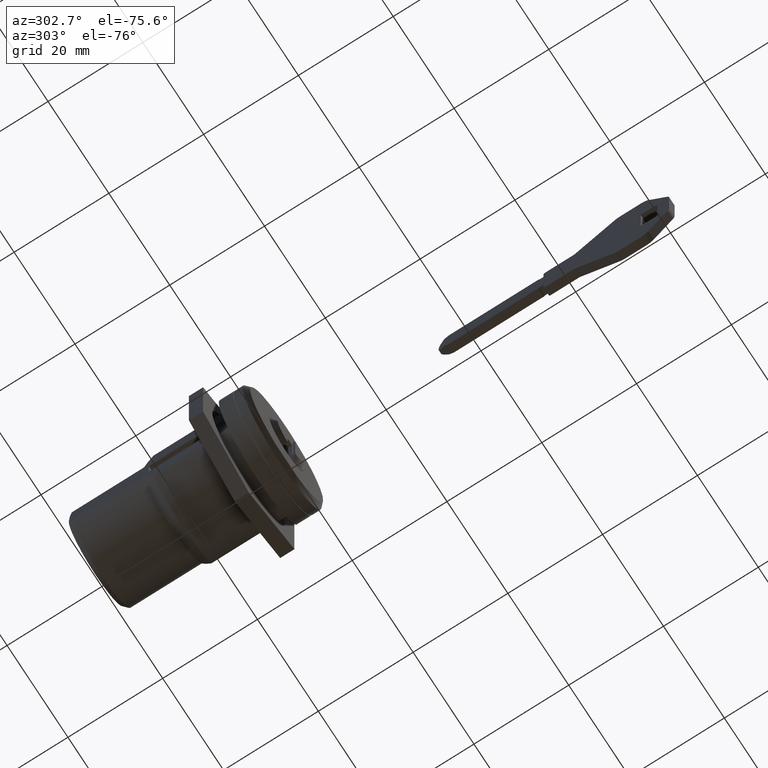
[diagram: clean part render]
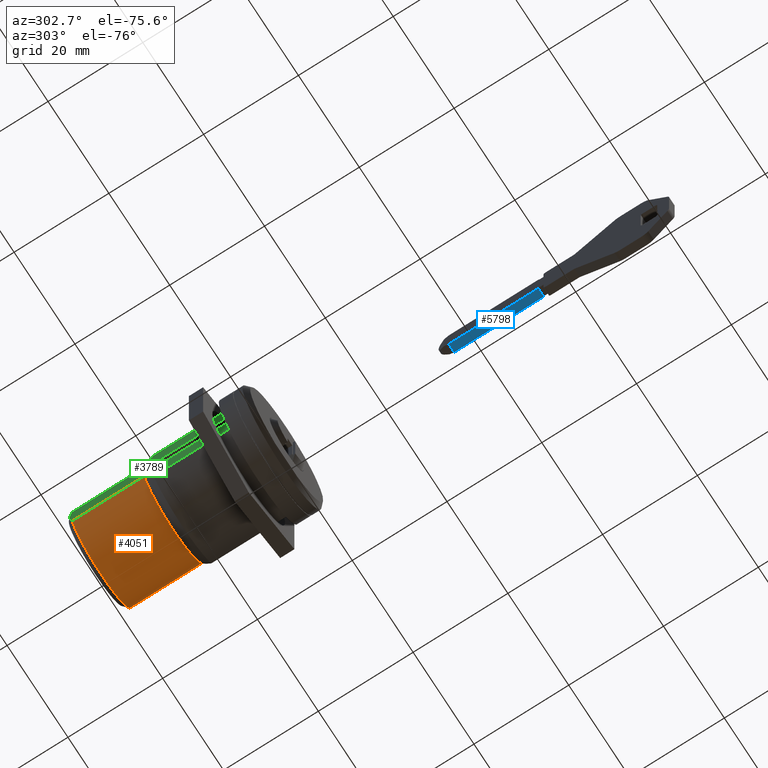
[diagram: same view with three faces highlighted in distinct colors, each labeled with its STEP entity id]
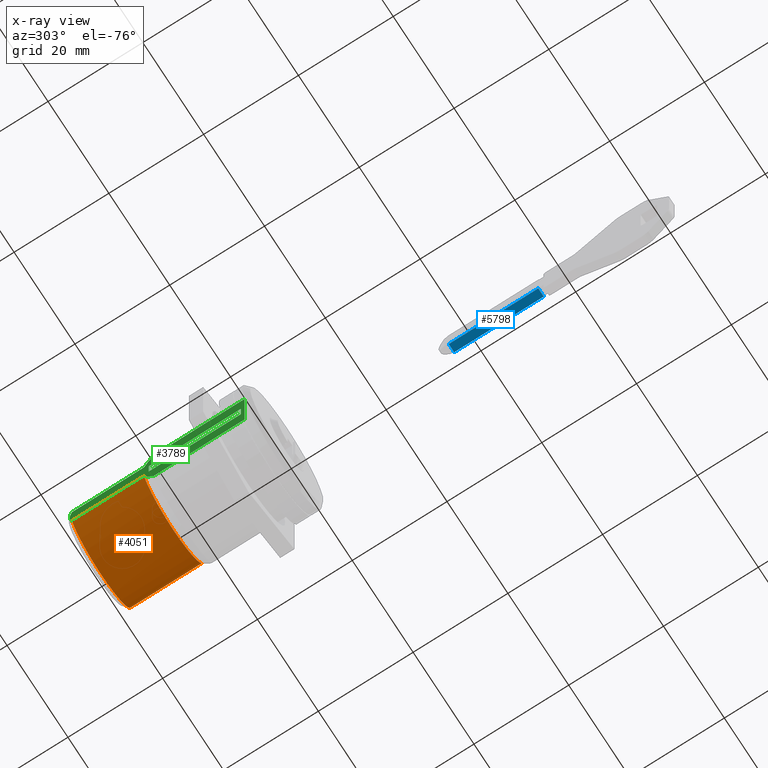
[diagram: x-ray of the same camera — body ghosted, the three highlighted faces saturated]
A machine part, auxiliary view with three faces highlighted in distinct colors.
The next image is the same camera in x-ray (body ghosted, the three faces saturated) — at least one of them is partly hidden behind the body in this view.
Their STEP definitions:

[orange] entity #4051 — the highlighted face is a freeform B-spline surface patch.
#2365=CARTESIAN_POINT('',(40.199999999968803,8.415591271343658,-5.401650076999593));
#2366=VERTEX_POINT('',#2365);
#2372=CARTESIAN_POINT('',(40.199999999999200,9.500000000000000,-3.122498999208290));
#2373=VERTEX_POINT('',#2372);
#2374=CARTESIAN_POINT('',(40.199999999999200,9.499999999999998,-3.122498999208288));
#2375=CARTESIAN_POINT('',(40.199999999999200,9.102767954870618,-4.331051645561760));
#2376=CARTESIAN_POINT('',(40.199999999968803,8.415591271343658,-5.401650076999593));
#2384=(BOUNDED_CURVE()B_SPLINE_CURVE(2,(#2374,#2375,#2376),.UNSPECIFIED.,.F.,.U.)B_SPLINE_CURVE_WITH_KNOTS((3,3),(0.0,0.104176805562154),.UNSPECIFIED.)CURVE()GEOMETRIC_REPRESENTATION_ITEM()RATIONAL_B_SPLINE_CURVE((1.0,0.960416022753616,0.937326974711125))REPRESENTATION_ITEM(''));
#2385=EDGE_CURVE('',#2373,#2366,#2384,.T.);
#2486=CARTESIAN_POINT('',(40.199999999999200,-9.500000000000000,-3.122498999208290));
#2487=VERTEX_POINT('',#2486);
#2509=CARTESIAN_POINT('',(40.199999999968803,8.415591271343658,-5.401650076999593));
#2510=CARTESIAN_POINT('',(40.199999999999200,5.464084191563152,-10.000000000002915));
#2511=CARTESIAN_POINT('',(40.199999999999200,0.0,-10.000000000002920));
#2512=CARTESIAN_POINT('',(40.199999999999200,-7.239474737680579,-10.000000000002917));
#2513=CARTESIAN_POINT('',(40.199999999999200,-9.499999999999996,-3.122498999208292));
#2521=(BOUNDED_CURVE()B_SPLINE_CURVE(2,(#2509,#2510,#2511,#2512,#2513),.UNSPECIFIED.,.F.,.U.)B_SPLINE_CURVE_WITH_KNOTS((3,2,3),(0.104176805562154,0.500000000000000,1.0),.UNSPECIFIED.)CURVE()GEOMETRIC_REPRESENTATION_ITEM()RATIONAL_B_SPLINE_CURVE((0.937326974711125,0.849599378310071,1.0,0.810015401063687,1.0))REPRESENTATION_ITEM(''));
#2522=EDGE_CURVE('',#2366,#2487,#2521,.T.);
#3581=CARTESIAN_POINT('',(24.999999999994600,-9.500000000000000,-3.122498999206030));
#3582=VERTEX_POINT('',#3581);
#3596=CARTESIAN_POINT('',(40.199999999999200,-9.500000000000000,-3.122498999208290));
#3597=CARTESIAN_POINT('',(24.999999999994600,-9.500000000000000,-3.122498999206030));
#3598=QUASI_UNIFORM_CURVE('',1,(#3596,#3597),.UNSPECIFIED.,.F.,.U.);
#3599=EDGE_CURVE('',#2487,#3582,#3598,.T.);
#3755=CARTESIAN_POINT('',(24.999999999994600,9.500000000000000,-3.122498999206030));
#3756=VERTEX_POINT('',#3755);
#3757=CARTESIAN_POINT('',(24.999999999994600,9.500000000000000,-3.122498999206030));
#3758=CARTESIAN_POINT('',(40.199999999999200,9.500000000000000,-3.122498999208290));
#3759=QUASI_UNIFORM_CURVE('',1,(#3757,#3758),.UNSPECIFIED.,.F.,.U.);
#3760=EDGE_CURVE('',#3756,#2373,#3759,.T.);
#3896=CARTESIAN_POINT('',(24.999999999994600,9.500000000000000,-3.122498999206030));
#3897=CARTESIAN_POINT('',(24.999999999994603,7.239474737681205,-10.000000000001513));
#3898=CARTESIAN_POINT('',(24.999999999994600,0.0,-10.000000000001521));
#3899=CARTESIAN_POINT('',(24.999999999994603,-7.239474737681205,-10.000000000001513));
#3900=CARTESIAN_POINT('',(24.999999999994600,-9.500000000000000,-3.122498999206030));
#3908=(BOUNDED_CURVE()B_SPLINE_CURVE(2,(#3896,#3897,#3898,#3899,#3900),.UNSPECIFIED.,.F.,.U.)B_SPLINE_CURVE_WITH_KNOTS((3,2,3),(0.0,0.500000000000000,1.0),.UNSPECIFIED.)CURVE()GEOMETRIC_REPRESENTATION_ITEM()RATIONAL_B_SPLINE_CURVE((1.0,0.810015401063624,1.0,0.810015401063624,1.0))REPRESENTATION_ITEM(''));
#3909=EDGE_CURVE('',#3756,#3582,#3908,.T.);
#4026=CARTESIAN_POINT('',(40.579999999999323,-9.597801699851534,-2.807526051592329));
#4027=CARTESIAN_POINT('',(24.610499999994481,-9.597801699851534,-2.807526051592329));
#4028=CARTESIAN_POINT('',(40.579999999999323,-7.443511191010814,-10.172178321158755));
#4029=CARTESIAN_POINT('',(24.610499999994481,-7.443511191010814,-10.172178321158755));
#4030=CARTESIAN_POINT('',(40.579999999999323,0.227768050173375,-9.997405749261377));
#4031=CARTESIAN_POINT('',(24.610499999994481,0.227768050173375,-9.997405749261377));
#4032=CARTESIAN_POINT('',(40.579999999999323,7.899047291357566,-9.822633177363999));
#4033=CARTESIAN_POINT('',(24.610499999994481,7.899047291357566,-9.822633177363999));
#4034=CARTESIAN_POINT('',(40.579999999999323,9.715703118353003,-2.367511967460393));
#4035=CARTESIAN_POINT('',(24.610499999994481,9.715703118353003,-2.367511967460393));
#4043=(BOUNDED_SURFACE()B_SPLINE_SURFACE(1,2,((#4026,#4028,#4030,#4032,#4034),(#4027,#4029,#4031,#4033,#4035)),.UNSPECIFIED.,.F.,.F.,.U.)B_SPLINE_SURFACE_WITH_KNOTS((2,2),(3,2,3),(0.0,15.969500000004849),(0.0,13.578170354537891,27.156340709075771),.UNSPECIFIED.)GEOMETRIC_REPRESENTATION_ITEM()RATIONAL_B_SPLINE_SURFACE(((1.0,0.793353340291235,1.0,0.793353340291235,1.0),(1.0,0.793353340291235,1.0,0.793353340291235,1.0)))REPRESENTATION_ITEM('')SURFACE());
#4044=ORIENTED_EDGE('',*,*,#2385,.T.);
#4045=ORIENTED_EDGE('',*,*,#2522,.T.);
#4046=ORIENTED_EDGE('',*,*,#3599,.T.);
#4047=ORIENTED_EDGE('',*,*,#3909,.F.);
#4048=ORIENTED_EDGE('',*,*,#3760,.T.);
#4049=EDGE_LOOP('',(#4044,#4045,#4046,#4047,#4048));
#4050=FACE_OUTER_BOUND('',#4049,.T.);
#4051=ADVANCED_FACE('',(#4050),#4043,.T.);

[blue] entity #5798 — the highlighted face is a freeform B-spline surface patch.
#4816=CARTESIAN_POINT('',(-52.680282098133802,-0.900000000000012,-4.300000000001405));
#4817=VERTEX_POINT('',#4816);
#4823=CARTESIAN_POINT('',(-33.780282098133753,-0.900000000000012,-4.300000000001520));
#4824=VERTEX_POINT('',#4823);
#4825=CARTESIAN_POINT('',(-33.780282098133753,-0.900000000000012,-4.300000000001520));
#4826=CARTESIAN_POINT('',(-52.680282098133802,-0.900000000000012,-4.300000000001405));
#4827=QUASI_UNIFORM_CURVE('',1,(#4825,#4826),.UNSPECIFIED.,.F.,.U.);
#4828=EDGE_CURVE('',#4824,#4817,#4827,.T.);
#4941=CARTESIAN_POINT('',(-33.780282098133753,0.900000000000012,-4.300000000001520));
#4942=VERTEX_POINT('',#4941);
#4948=CARTESIAN_POINT('',(-52.680282098133802,0.900000000000012,-4.300000000001405));
#4949=VERTEX_POINT('',#4948);
#4950=CARTESIAN_POINT('',(-33.780282098133753,0.900000000000012,-4.300000000001520));
#4951=CARTESIAN_POINT('',(-52.680282098133802,0.900000000000012,-4.300000000001405));
#4952=QUASI_UNIFORM_CURVE('',1,(#4950,#4951),.UNSPECIFIED.,.F.,.U.);
#4953=EDGE_CURVE('',#4942,#4949,#4952,.T.);
#5775=CARTESIAN_POINT('',(-52.680282098133802,0.900000000000012,-4.300000000001405));
#5776=CARTESIAN_POINT('',(-52.680282098133802,-0.900000000000012,-4.300000000001405));
#5777=QUASI_UNIFORM_CURVE('',1,(#5775,#5776),.UNSPECIFIED.,.F.,.U.);
#5778=EDGE_CURVE('',#4949,#4817,#5777,.T.);
#5783=CARTESIAN_POINT('',(-53.624337593760970,-0.989909973183288,-4.300000000001405));
#5784=CARTESIAN_POINT('',(-32.836226602506592,-0.989909973183288,-4.300000000001405));
#5785=CARTESIAN_POINT('',(-53.624337593760970,0.989909908810271,-4.300000000001405));
#5786=CARTESIAN_POINT('',(-32.836226602506592,0.989909908810271,-4.300000000001405));
#5787=B_SPLINE_SURFACE_WITH_KNOTS('',1,1,((#5783,#5785),(#5784,#5786)),.UNSPECIFIED.,.F.,.F.,.U.,(2,2),(2,2),(0.0,20.788110991254388),(0.0,1.979819881993559),.UNSPECIFIED.);
#5788=ORIENTED_EDGE('',*,*,#4828,.T.);
#5789=ORIENTED_EDGE('',*,*,#5778,.F.);
#5790=ORIENTED_EDGE('',*,*,#4953,.F.);
#5791=CARTESIAN_POINT('',(-33.780282098133753,0.900000000000012,-4.300000000001520));
#5792=CARTESIAN_POINT('',(-33.780282098133753,-0.900000000000012,-4.300000000001520));
#5793=QUASI_UNIFORM_CURVE('',1,(#5791,#5792),.UNSPECIFIED.,.F.,.U.);
#5794=EDGE_CURVE('',#4942,#4824,#5793,.T.);
#5795=ORIENTED_EDGE('',*,*,#5794,.T.);
#5796=EDGE_LOOP('',(#5788,#5789,#5790,#5795));
#5797=FACE_OUTER_BOUND('',#5796,.T.);
#5798=ADVANCED_FACE('',(#5797),#5787,.F.);

[green] entity #3789 — the highlighted face is a freeform B-spline surface patch.
#2372=CARTESIAN_POINT('',(40.199999999999200,9.500000000000000,-3.122498999208290));
#2373=VERTEX_POINT('',#2372);
#2387=CARTESIAN_POINT('',(40.199999999999200,9.500000000000000,3.122498999208065));
#2388=VERTEX_POINT('',#2387);
#2389=CARTESIAN_POINT('',(40.199999999999250,9.500000000000000,-3.122498999208306));
#2390=CARTESIAN_POINT('',(40.278488772283772,9.500000000000002,-2.871133755202025));
#2391=CARTESIAN_POINT('',(40.349313588058500,9.500000000000000,-2.616950969025410));
#2392=CARTESIAN_POINT('',(40.442385996470847,9.499999999999998,-2.230836936861609));
#2393=CARTESIAN_POINT('',(40.471214315477312,9.500000000000000,-2.101324999234522));
#2394=CARTESIAN_POINT('',(40.524183209117737,9.500000000000000,-1.840577742925624));
#2395=CARTESIAN_POINT('',(40.548336720412543,9.500000000000000,-1.709200585151537));
#2396=CARTESIAN_POINT('',(40.655862299006763,9.500000000000000,-1.052979438955482));
#2397=CARTESIAN_POINT('',(40.700105820171402,9.500000000000002,-0.526391610831322));
#2398=CARTESIAN_POINT('',(40.699946803016033,9.500000000000004,0.266055296051303));
#2399=CARTESIAN_POINT('',(40.688857466678350,9.500000000000004,0.530629823885389));
#2400=CARTESIAN_POINT('',(40.655682827513203,9.499999999999996,0.928129419458317));
#2401=CARTESIAN_POINT('',(40.641831117773499,9.500000000000002,1.061026564323568));
#2402=CARTESIAN_POINT('',(40.608902361715550,9.499999999999996,1.325269367390163));
#2403=CARTESIAN_POINT('',(40.589840762858302,9.500000000000002,1.456626893737618));
#2404=CARTESIAN_POINT('',(40.482202702661297,9.500000000000004,2.109788098608739));
#2405=CARTESIAN_POINT('',(40.356678853704977,9.500000000000000,2.620725087525325));
#2406=CARTESIAN_POINT('',(40.199999999999200,9.500000000000000,3.122498999208065));
#2407=B_SPLINE_CURVE_WITH_KNOTS('',3,(#2389,#2390,#2391,#2392,#2393,#2394,#2395,#2396,#2397,#2398,#2399,#2400,#2401,#2402,#2403,#2404,#2405,#2406),.UNSPECIFIED.,.F.,.U.,(4,2,2,2,2,2,2,2,4),(0.0,0.125000000000000,0.187500000000000,0.250000000000000,0.500000000000000,0.624999999999999,0.687499999999999,0.749999999999999,1.0),.UNSPECIFIED.);
#2408=EDGE_CURVE('',#2373,#2388,#2407,.T.);
#2740=CARTESIAN_POINT('',(4.600000000000000,9.499999999998071,1.900000000000210));
#2741=VERTEX_POINT('',#2740);
#2748=CARTESIAN_POINT('',(4.600000000000000,9.499999999998071,-1.899999999999775));
#2749=VERTEX_POINT('',#2748);
#2755=CARTESIAN_POINT('',(4.600000000000000,9.499999999998071,1.900000000000210));
#2756=CARTESIAN_POINT('',(4.600000000000000,9.499999999998071,-1.899999999999775));
#2757=QUASI_UNIFORM_CURVE('',1,(#2755,#2756),.UNSPECIFIED.,.F.,.U.);
#2758=EDGE_CURVE('',#2741,#2749,#2757,.T.);
#2778=CARTESIAN_POINT('',(24.0,9.499999999998071,1.900000000001175));
#2779=VERTEX_POINT('',#2778);
#2780=CARTESIAN_POINT('',(24.0,9.499999999998071,1.900000000001175));
#2781=CARTESIAN_POINT('',(4.600000000000000,9.499999999998071,1.900000000000210));
#2782=QUASI_UNIFORM_CURVE('',1,(#2780,#2781),.UNSPECIFIED.,.F.,.U.);
#2783=EDGE_CURVE('',#2779,#2741,#2782,.T.);
#2798=CARTESIAN_POINT('',(24.000000000000899,9.500000000000000,-1.899999999998810));
#2799=VERTEX_POINT('',#2798);
#2800=CARTESIAN_POINT('',(24.000000000000899,9.500000000000000,-1.899999999998810));
#2801=CARTESIAN_POINT('',(24.0,9.499999999998071,1.900000000001175));
#2802=QUASI_UNIFORM_CURVE('',1,(#2800,#2801),.UNSPECIFIED.,.F.,.U.);
#2803=EDGE_CURVE('',#2799,#2779,#2802,.T.);
#3642=CARTESIAN_POINT('',(3.800000000000000,9.500000000000000,7.331439149312010));
#3643=VERTEX_POINT('',#3642);
#3644=CARTESIAN_POINT('',(3.800000000000000,9.500000000000000,-7.331439149303040));
#3645=VERTEX_POINT('',#3644);
#3646=CARTESIAN_POINT('',(3.800000000000000,9.500000000000000,7.331439149312010));
#3647=CARTESIAN_POINT('',(3.800000000000000,9.500000000000000,-7.331439149303040));
#3648=QUASI_UNIFORM_CURVE('',1,(#3646,#3647),.UNSPECIFIED.,.F.,.U.);
#3649=EDGE_CURVE('',#3643,#3645,#3648,.T.);
#3681=CARTESIAN_POINT('',(3.999999999990680,9.500000000000000,7.331439149312010));
#3682=VERTEX_POINT('',#3681);
#3683=CARTESIAN_POINT('',(3.999999999990680,9.500000000000000,7.331439149312010));
#3684=CARTESIAN_POINT('',(3.800000000000000,9.500000000000000,7.331439149312010));
#3685=QUASI_UNIFORM_CURVE('',1,(#3683,#3684),.UNSPECIFIED.,.F.,.U.);
#3686=EDGE_CURVE('',#3682,#3643,#3685,.T.);
#3689=CARTESIAN_POINT('',(3.999999999990680,9.500000000000000,-7.331439149303040));
#3690=VERTEX_POINT('',#3689);
#3691=CARTESIAN_POINT('',(3.999999999990680,9.500000000000000,-7.331439149303040));
#3692=CARTESIAN_POINT('',(3.800000000000000,9.500000000000000,-7.331439149303040));
#3693=QUASI_UNIFORM_CURVE('',1,(#3691,#3692),.UNSPECIFIED.,.F.,.U.);
#3694=EDGE_CURVE('',#3690,#3645,#3693,.T.);
#3712=CARTESIAN_POINT('',(1.956845071579800,9.500000000000000,-8.063849754254749));
#3713=CARTESIAN_POINT('',(1.956845071579800,9.500000000000000,8.063850278649110));
#3714=CARTESIAN_POINT('',(42.543155916945317,9.500000000000000,-8.063849754254749));
#3715=CARTESIAN_POINT('',(42.543155916945317,9.500000000000000,8.063850278649110));
#3716=B_SPLINE_SURFACE_WITH_KNOTS('',1,1,((#3712,#3714),(#3713,#3715)),.UNSPECIFIED.,.F.,.F.,.U.,(2,2),(2,2),(0.0,16.127700032903860),(0.0,40.586310845365517),.UNSPECIFIED.);
#3717=CARTESIAN_POINT('',(22.999999999996149,9.500000000000000,-7.331439149303040));
#3718=VERTEX_POINT('',#3717);
#3719=CARTESIAN_POINT('',(22.999999999996149,9.500000000000000,-7.331439149303040));
#3720=CARTESIAN_POINT('',(3.999999999990680,9.500000000000000,-7.331439149303040));
#3721=QUASI_UNIFORM_CURVE('',1,(#3719,#3720),.UNSPECIFIED.,.F.,.U.);
#3722=EDGE_CURVE('',#3718,#3690,#3721,.T.);
#3723=ORIENTED_EDGE('',*,*,#3722,.T.);
#3724=ORIENTED_EDGE('',*,*,#3694,.T.);
#3725=ORIENTED_EDGE('',*,*,#3649,.F.);
#3726=ORIENTED_EDGE('',*,*,#3686,.F.);
#3727=CARTESIAN_POINT('',(22.999999999996149,9.500000000000000,7.331439149312010));
#3728=VERTEX_POINT('',#3727);
#3729=CARTESIAN_POINT('',(22.999999999996149,9.500000000000000,7.331439149312010));
#3730=CARTESIAN_POINT('',(3.999999999990680,9.500000000000000,7.331439149312010));
#3731=QUASI_UNIFORM_CURVE('',1,(#3729,#3730),.UNSPECIFIED.,.F.,.U.);
#3732=EDGE_CURVE('',#3728,#3682,#3731,.T.);
#3733=ORIENTED_EDGE('',*,*,#3732,.F.);
#3734=CARTESIAN_POINT('',(24.999999999994600,9.500000000000000,3.122498999205805));
#3735=VERTEX_POINT('',#3734);
#3736=CARTESIAN_POINT('',(24.999999999994600,9.500000000000000,3.122498999205805));
#3737=CARTESIAN_POINT('',(24.925802315455918,9.500000000000000,3.360113017410768));
#3738=CARTESIAN_POINT('',(24.844484473513731,9.500000000000000,3.596026189904492));
#3739=CARTESIAN_POINT('',(24.641703428162820,9.500000000000004,4.138299967353591));
#3740=CARTESIAN_POINT('',(24.515241362047210,9.500000000000004,4.444313622905668));
#3741=CARTESIAN_POINT('',(24.247143629278401,9.500000000000004,5.044376024324025));
#3742=CARTESIAN_POINT('',(24.105234387026641,9.500000000000002,5.339316097454527));
#3743=CARTESIAN_POINT('',(23.660425816012008,9.500000000000002,6.211777745949073));
#3744=CARTESIAN_POINT('',(23.338677845098889,9.499999999999996,6.777091146603532));
#3745=CARTESIAN_POINT('',(22.999999999996149,9.500000000000000,7.331439149312010));
#3746=B_SPLINE_CURVE_WITH_KNOTS('',3,(#3736,#3737,#3738,#3739,#3740,#3741,#3742,#3743,#3744,#3745),.UNSPECIFIED.,.F.,.U.,(4,2,2,2,4),(0.702415608199153,0.750000000000001,0.812500000000001,0.875000000000001,1.0),.UNSPECIFIED.);
#3747=EDGE_CURVE('',#3735,#3728,#3746,.T.);
#3748=ORIENTED_EDGE('',*,*,#3747,.F.);
#3749=CARTESIAN_POINT('',(40.199999999999200,9.500000000000000,3.122498999208065));
#3750=CARTESIAN_POINT('',(24.999999999994600,9.500000000000000,3.122498999205805));
#3751=QUASI_UNIFORM_CURVE('',1,(#3749,#3750),.UNSPECIFIED.,.F.,.U.);
#3752=EDGE_CURVE('',#2388,#3735,#3751,.T.);
#3753=ORIENTED_EDGE('',*,*,#3752,.F.);
#3754=ORIENTED_EDGE('',*,*,#2408,.F.);
#3755=CARTESIAN_POINT('',(24.999999999994600,9.500000000000000,-3.122498999206030));
#3756=VERTEX_POINT('',#3755);
#3757=CARTESIAN_POINT('',(24.999999999994600,9.500000000000000,-3.122498999206030));
#3758=CARTESIAN_POINT('',(40.199999999999200,9.500000000000000,-3.122498999208290));
#3759=QUASI_UNIFORM_CURVE('',1,(#3757,#3758),.UNSPECIFIED.,.F.,.U.);
#3760=EDGE_CURVE('',#3756,#2373,#3759,.T.);
#3761=ORIENTED_EDGE('',*,*,#3760,.F.);
#3762=CARTESIAN_POINT('',(22.999999999996149,9.500000000000000,-7.331439149303040));
#3763=CARTESIAN_POINT('',(23.338770416341411,9.499999999999998,-6.776944334121098));
#3764=CARTESIAN_POINT('',(23.659950687454948,9.499999999999998,-6.212474141379486));
#3765=CARTESIAN_POINT('',(24.103011907616640,9.500000000000000,-5.343816858956917));
#3766=CARTESIAN_POINT('',(24.244192524736668,9.499999999999998,-5.050574617840720));
#3767=CARTESIAN_POINT('',(24.510639027513399,9.500000000000000,-4.455064885787134));
#3768=CARTESIAN_POINT('',(24.635910985293791,9.499999999999998,-4.152800838353224));
#3769=CARTESIAN_POINT('',(24.809136208425510,9.500000000000002,-3.691078195180285));
#3770=CARTESIAN_POINT('',(24.864493921575779,9.499999999999998,-3.535569304263111));
#3771=CARTESIAN_POINT('',(24.945572839315538,9.500000000000004,-3.293626041992283));
#3772=CARTESIAN_POINT('',(24.973260348937281,9.500000000000002,-3.208134405823119));
#3773=CARTESIAN_POINT('',(24.999999999994600,9.500000000000000,-3.122498999206030));
#3774=B_SPLINE_CURVE_WITH_KNOTS('',3,(#3762,#3763,#3764,#3765,#3766,#3767,#3768,#3769,#3770,#3771,#3772,#3773),.UNSPECIFIED.,.F.,.U.,(4,2,2,2,2,4),(0.0,0.125000000000000,0.187500000000000,0.250000000000000,0.281250000000000,0.298283462028832),.UNSPECIFIED.);
#3775=EDGE_CURVE('',#3718,#3756,#3774,.T.);
#3776=ORIENTED_EDGE('',*,*,#3775,.F.);
#3777=EDGE_LOOP('',(#3723,#3724,#3725,#3726,#3733,#3748,#3753,#3754,#3761,#3776));
#3778=FACE_OUTER_BOUND('',#3777,.T.);
#3779=CARTESIAN_POINT('',(4.600000000000000,9.499999999998071,-1.899999999999775));
#3780=CARTESIAN_POINT('',(24.000000000000899,9.500000000000000,-1.899999999998810));
#3781=QUASI_UNIFORM_CURVE('',1,(#3779,#3780),.UNSPECIFIED.,.F.,.U.);
#3782=EDGE_CURVE('',#2749,#2799,#3781,.T.);
#3783=ORIENTED_EDGE('',*,*,#3782,.T.);
#3784=ORIENTED_EDGE('',*,*,#2803,.T.);
#3785=ORIENTED_EDGE('',*,*,#2783,.T.);
#3786=ORIENTED_EDGE('',*,*,#2758,.T.);
#3787=EDGE_LOOP('',(#3783,#3784,#3785,#3786));
#3788=FACE_BOUND('',#3787,.T.);
#3789=ADVANCED_FACE('',(#3778,#3788),#3716,.T.);